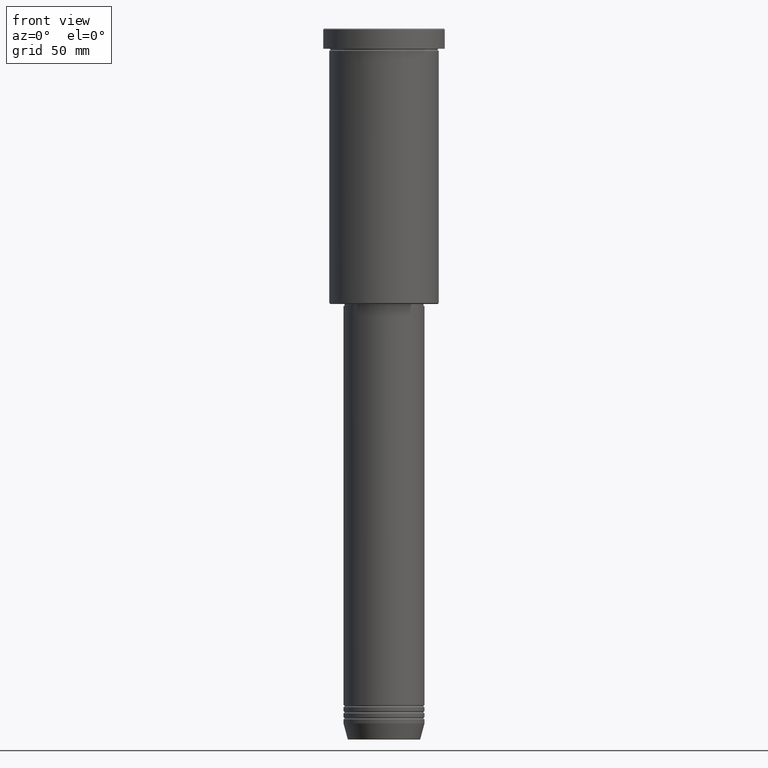
[diagram: clean part render]
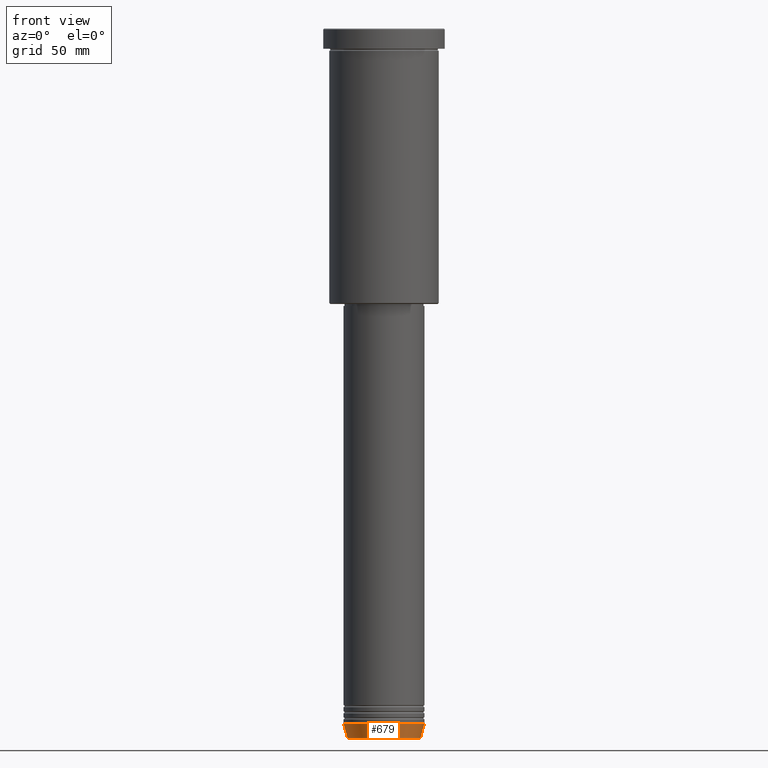
[diagram: same view with one face highlighted and labeled with its STEP entity id]
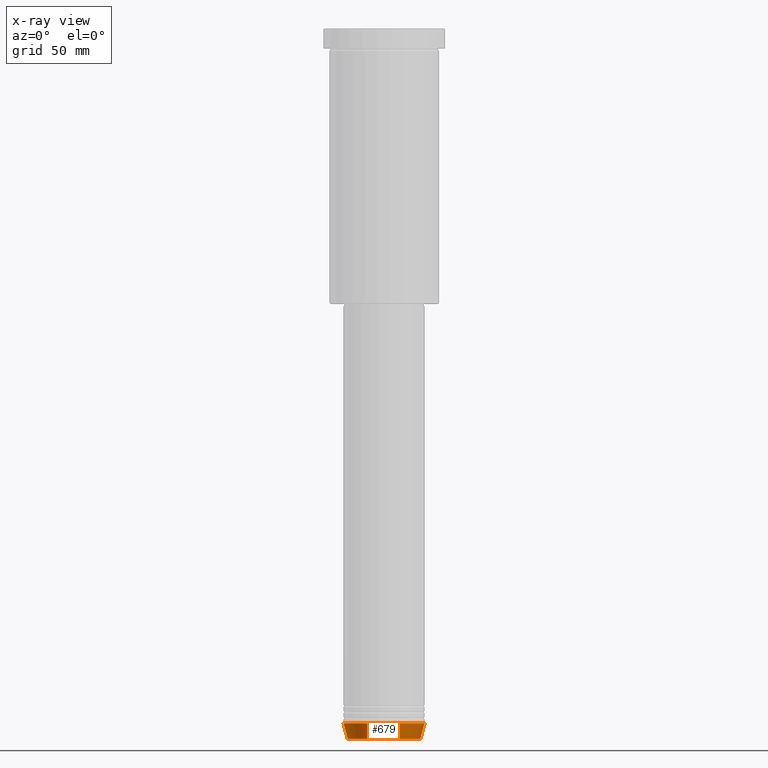
[diagram: x-ray of the same camera — body ghosted, the highlighted face saturated]
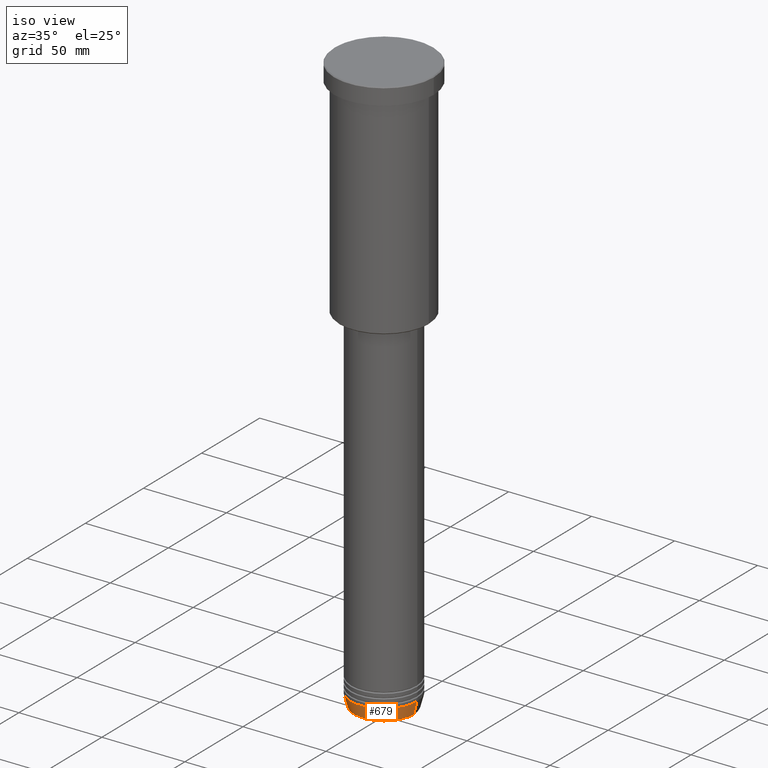
[diagram: same view with one face highlighted and labeled with its STEP entity id]
A machine part, front view. The second image highlights one B-rep face of the part: STEP entity #679.
The next image is the same camera in x-ray: the body ghosted, the highlighted face saturated — about 0% of this face is hidden behind the body in this view.
A second angle (iso view) of the same face is appended — the face is thin or edge-on in the first view.
In plain terms, the highlighted conical surface has half-angle 15 deg.
Its self-contained STEP definition (entity closure, byte-faithful):
#2 = LINE ( 'NONE', #530, #705 ) ;
#14 = CARTESIAN_POINT ( 'NONE',  ( 20.00000000000000000, 0.000000000000000000, -343.0000000000000000 ) ) ;
#44 = CIRCLE ( 'NONE', #1031, 20.00000000000000000 ) ;
#55 = ORIENTED_EDGE ( 'NONE', *, *, #613, .T. ) ;
#107 = CARTESIAN_POINT ( 'NONE',  ( -17.95570587970607690, 2.324116685748021371E-15, -350.6294095225512137 ) ) ;
#133 = VECTOR ( 'NONE', #553, 1000.000000000000114 ) ;
#139 = VERTEX_POINT ( 'NONE', #210 ) ;
#156 = DIRECTION ( 'NONE',  ( 1.000000000000000000, 0.000000000000000000, 0.000000000000000000 ) ) ;
#179 = DIRECTION ( 'NONE',  ( 1.000000000000000000, 0.000000000000000000, 0.000000000000000000 ) ) ;
#194 = LINE ( 'NONE', #14, #133 ) ;
#202 = EDGE_LOOP ( 'NONE', ( #1160, #977, #55, #647 ) ) ;
#205 = CARTESIAN_POINT ( 'NONE',  ( -20.00000000000000000, 2.449293598294706513E-15, -343.0000000000000000 ) ) ;
#210 = CARTESIAN_POINT ( 'NONE',  ( 17.95570587970607690, 0.000000000000000000, -350.6294095225512137 ) ) ;
#243 = DIRECTION ( 'NONE',  ( -0.000000000000000000, -0.000000000000000000, 1.000000000000000000 ) ) ;
#265 = DIRECTION ( 'NONE',  ( -0.000000000000000000, -0.000000000000000000, 1.000000000000000000 ) ) ;
#272 = AXIS2_PLACEMENT_3D ( 'NONE', #277, #636, #179 ) ;
#277 = CARTESIAN_POINT ( 'NONE',  ( 0.000000000000000000, 0.000000000000000000, -343.0000000000000000 ) ) ;
#297 = CONICAL_SURFACE ( 'NONE', #272, 20.00000000000000000, 0.2617993877991499629 ) ;
#363 = DIRECTION ( 'NONE',  ( -0.2588190451025212391, 3.169619151431771721E-17, 0.9659258262890680902 ) ) ;
#406 = EDGE_CURVE ( 'NONE', #584, #139, #1050, .T. ) ;
#506 = EDGE_CURVE ( 'NONE', #584, #1158, #2, .T. ) ;
#508 = EDGE_CURVE ( 'NONE', #1158, #899, #44, .T. ) ;
#510 = CARTESIAN_POINT ( 'NONE',  ( 20.00000000000000000, 0.000000000000000000, -343.0000000000000000 ) ) ;
#530 = CARTESIAN_POINT ( 'NONE',  ( -20.00000000000000000, 2.449293598294706513E-15, -343.0000000000000000 ) ) ;
#553 = DIRECTION ( 'NONE',  ( 0.2588190451025212391, 0.000000000000000000, 0.9659258262890680902 ) ) ;
#584 = VERTEX_POINT ( 'NONE', #107 ) ;
#613 = EDGE_CURVE ( 'NONE', #139, #899, #194, .T. ) ;
#636 = DIRECTION ( 'NONE',  ( -0.000000000000000000, -0.000000000000000000, 1.000000000000000000 ) ) ;
#647 = ORIENTED_EDGE ( 'NONE', *, *, #508, .F. ) ;
#679 = ADVANCED_FACE ( 'NONE', ( #1093 ), #297, .T. ) ;
#705 = VECTOR ( 'NONE', #363, 1000.000000000000114 ) ;
#899 = VERTEX_POINT ( 'NONE', #510 ) ;
#977 = ORIENTED_EDGE ( 'NONE', *, *, #406, .T. ) ;
#978 = CARTESIAN_POINT ( 'NONE',  ( 0.000000000000000000, 0.000000000000000000, -343.0000000000000000 ) ) ;
#986 = CARTESIAN_POINT ( 'NONE',  ( 0.000000000000000000, 0.000000000000000000, -350.6294095225512137 ) ) ;
#1031 = AXIS2_PLACEMENT_3D ( 'NONE', #978, #265, #156 ) ;
#1050 = CIRCLE ( 'NONE', #1107, 17.95570587970607690 ) ;
#1081 = DIRECTION ( 'NONE',  ( 1.000000000000000000, 0.000000000000000000, 0.000000000000000000 ) ) ;
#1093 = FACE_OUTER_BOUND ( 'NONE', #202, .T. ) ;
#1107 = AXIS2_PLACEMENT_3D ( 'NONE', #986, #243, #1081 ) ;
#1158 = VERTEX_POINT ( 'NONE', #205 ) ;
#1160 = ORIENTED_EDGE ( 'NONE', *, *, #506, .F. ) ;